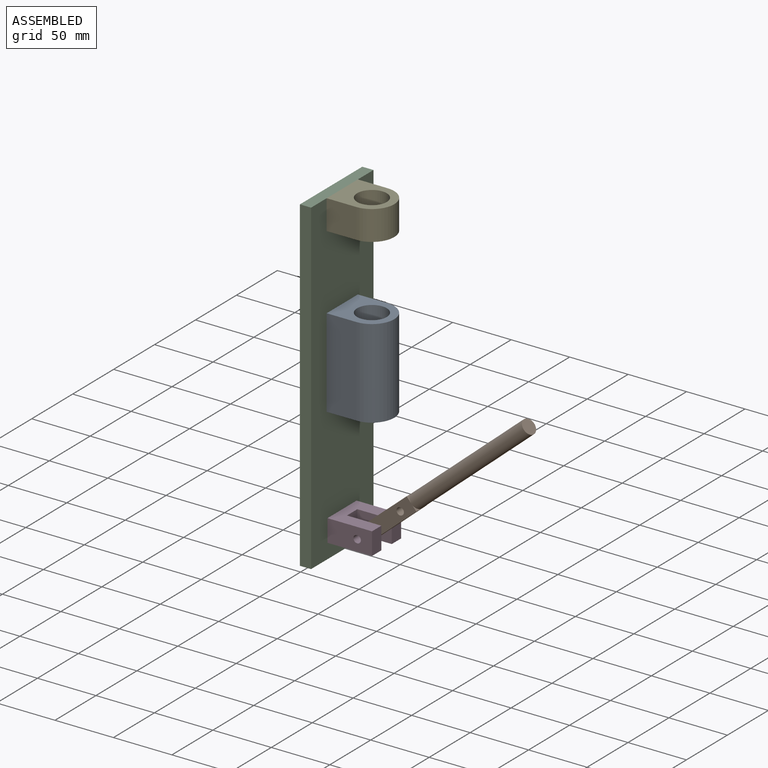
[diagram: assembled view]
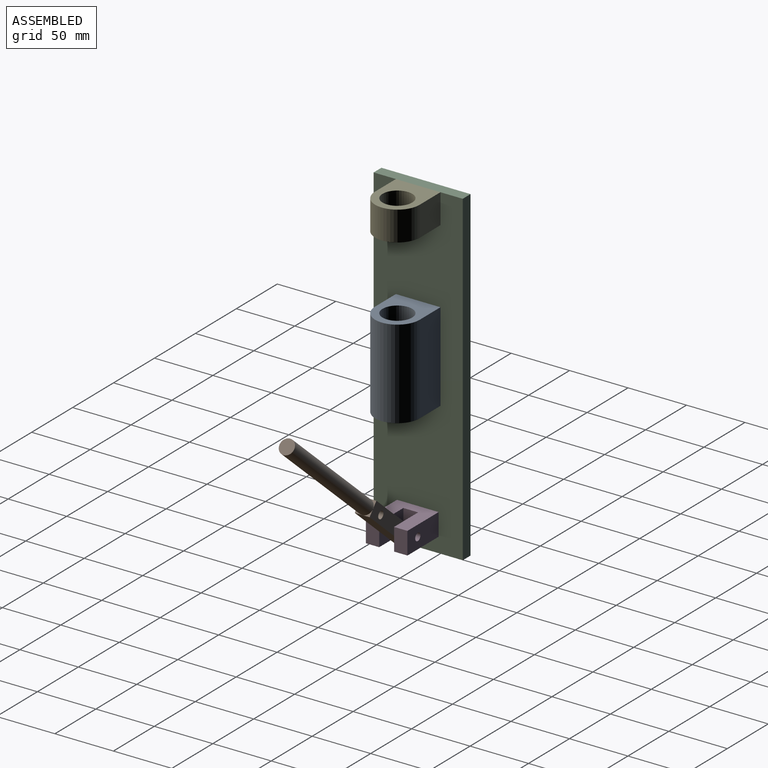
[diagram: assembled view, second angle]
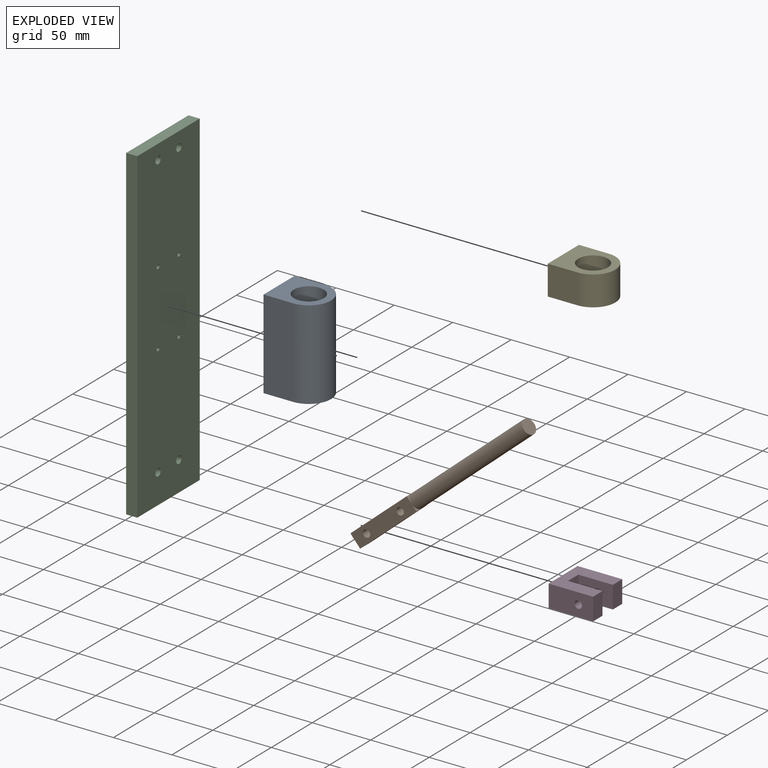
[diagram: exploded view]
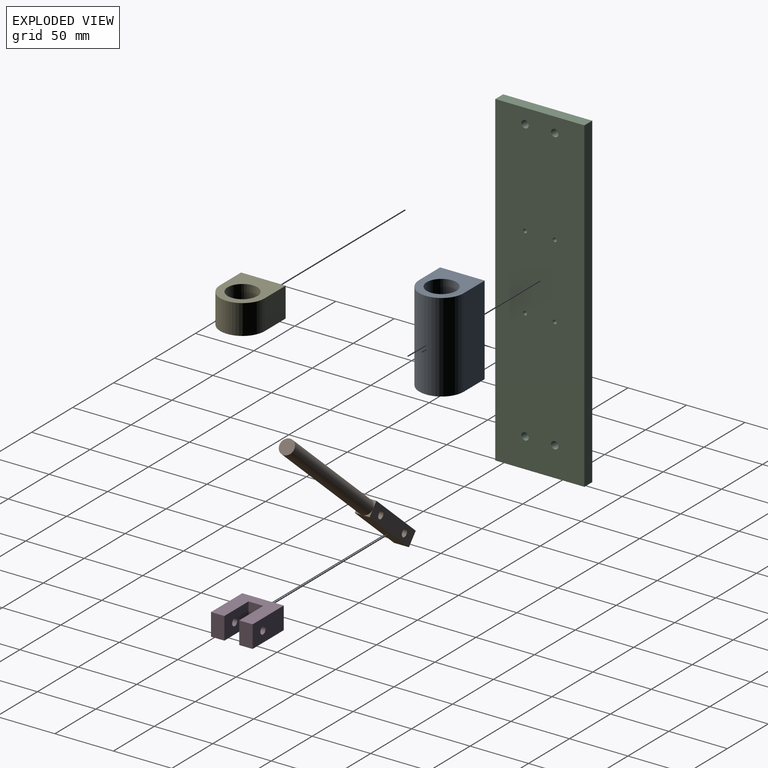
[diagram: exploded view, second angle]
ASSEMBLY  parts=5 mates=4
PART A: 15 faces, bbox 38.1x44.5x76.2 mm
  f0: plane 76.2x25.4mm, normal (-1,0,0), area 1935.5mm2, adj f1,f4,f5,f6
  f1: plane 76.2x38.1mm, normal (0,-1,0), area 2869mm2, adj f0,f2,f5,f6,f7,f9,f11,f13
  f2: plane 76.2x25.4mm, normal (1,0,0), area 1935.5mm2, adj f1,f4,f5,f6
  f3: cylinder r=12.7mm len=76.2mm, axis (0,0,-1), area 6080.5mm2, adj f5,f6
  f4: cylinder r=19.05mm len=76.2mm, axis (0,0,-1), area 4560.4mm2, adj f0,f2,f5,f6
  f5: plane 44.45x38.1mm, normal (0,0,1), area 1031.1mm2, adj f0,f1,f2,f3,f4
  f6: plane 44.45x38.1mm, normal (0,0,-1), area 1031.1mm2, adj f0,f1,f2,f3,f4
  f7: cylinder r=1.65mm len=12.7mm, axis (0,-1,0), area 131.7mm2, adj f1,f8
  f8: plane 3.3x3.3mm, normal (0,-1,0), area 8.6mm2, adj f7
  f9: cylinder r=1.65mm len=12.7mm, axis (0,-1,0), area 131.7mm2, adj f1,f10
  f10: plane 3.3x3.3mm, normal (0,-1,0), area 8.6mm2, adj f9
  f11: cylinder r=1.65mm len=12.7mm, axis (0,-1,0), area 131.7mm2, adj f1,f12
  f12: plane 3.3x3.3mm, normal (0,-1,0), area 8.6mm2, adj f11
  f13: cylinder r=1.65mm len=12.7mm, axis (0,-1,0), area 131.7mm2, adj f1,f14
  f14: plane 3.3x3.3mm, normal (0,-1,0), area 8.6mm2, adj f13
PART B: 13 faces, bbox 190.5x12.7x12.7 mm
  f0: plane 6.35x6.35mm, normal (1,0,0), area 8.7mm2, adj f3,f8,f9
  f1: plane 6.35x6.35mm, normal (1,0,0), area 8.7mm2, adj f3,f7,f9
  f2: plane 6.35x6.35mm, normal (1,0,0), area 8.7mm2, adj f5,f7,f9
  f3: plane 63.5x12.7mm, normal (0,0,1), area 806.5mm2, adj f0,f1,f4,f7,f8
  f4: plane 12.7x12.7mm, normal (-1,0,0), area 161.3mm2, adj f3,f5,f7,f8
  f5: plane 63.5x12.7mm, normal (0,0,-1), area 806.5mm2, adj f2,f4,f6,f7,f8
  f6: plane 6.35x6.35mm, normal (1,0,0), area 8.7mm2, adj f5,f8,f9
  f7: plane 63.5x12.7mm, normal (0,-1,0), area 743.1mm2, adj f1,f2,f3,f4,f5,f11,f12
  f8: plane 63.5x12.7mm, normal (0,1,0), area 743.1mm2, adj f0,f3,f4,f5,f6,f11,f12
  f9: cylinder r=6.35mm len=127mm, axis (-1,0,0), area 5067.1mm2, adj f0,f1,f2,f6,f10
  f10: plane 12.7x12.7mm, normal (1,0,0), area 126.7mm2, adj f9
  f11: cylinder r=3.17mm len=12.7mm, axis (0,-1,0), area 253.4mm2, adj f7,f8
  f12: cylinder r=3.17mm len=12.7mm, axis (0,-1,0), area 253.4mm2, adj f7,f8
PART C: 14 faces, bbox 279.4x76.2x9.5 mm
  f0: plane 76.2x9.53mm, normal (-1,0,0), area 725.8mm2, adj f1,f10,f12,f13
  f1: plane 279.4x9.53mm, normal (0,-1,0), area 2661.3mm2, adj f0,f2,f12,f13
  f2: plane 76.2x9.53mm, normal (1,0,0), area 725.8mm2, adj f1,f10,f12,f13
  f3: cylinder r=1.65mm len=9.53mm, axis (0,0,-1), area 98.8mm2, adj f12,f13
  f4: cylinder r=1.65mm len=9.53mm, axis (0,0,-1), area 98.8mm2, adj f12,f13
  f5: cylinder r=1.65mm len=9.53mm, axis (0,0,-1), area 98.8mm2, adj f12,f13
  f6: cylinder r=3.17mm len=9.53mm, axis (0,0,-1), area 190mm2, adj f12,f13
  f7: cylinder r=3.17mm len=9.53mm, axis (0,0,-1), area 190mm2, adj f12,f13
  f8: cylinder r=3.17mm len=9.53mm, axis (0,0,-1), area 190mm2, adj f12,f13
  f9: cylinder r=3.17mm len=9.53mm, axis (0,0,-1), area 190mm2, adj f12,f13
  f10: plane 279.4x9.53mm, normal (0,1,0), area 2661.3mm2, adj f0,f2,f12,f13
  f11: cylinder r=1.65mm len=9.53mm, axis (0,0,-1), area 98.8mm2, adj f12,f13
  f12: plane 279.4x76.2mm, normal (0,0,1), area 21129.3mm2, adj f0,f1,f2,f3,f4,f5,f6,f7
  f13: plane 279.4x76.2mm, normal (0,0,-1), area 21129.3mm2, adj f0,f1,f2,f3,f4,f5,f6,f7
PART D: 16 faces, bbox 35.6x19.1x38.1 mm
  f0: plane 19.05x11.43mm, normal (0,0,1), area 217.7mm2, adj f1,f7,f8,f9
  f1: plane 38.1x19.05mm, normal (-1,0,0), area 694.1mm2, adj f0,f2,f8,f9,f10
  f2: plane 35.56x19.05mm, normal (0,0,-1), area 614.1mm2, adj f1,f3,f8,f9,f12,f14
  f3: plane 38.1x19.05mm, normal (1,0,0), area 694.1mm2, adj f2,f4,f8,f9,f11
  f4: plane 19.05x11.43mm, normal (0,0,1), area 217.7mm2, adj f3,f5,f8,f9
  f5: plane 29.45x19.05mm, normal (-1,0,0), area 529.3mm2, adj f4,f6,f8,f9,f11
  f6: plane 19.05x12.7mm, normal (0,0,1), area 241.9mm2, adj f5,f7,f8,f9
  f7: plane 29.45x19.05mm, normal (1,0,0), area 529.3mm2, adj f0,f6,f8,f9,f10
  f8: plane 38.1x35.56mm, normal (0,-1,0), area 980.8mm2, adj f0,f1,f2,f3,f4,f5,f6,f7
  f9: plane 38.1x35.56mm, normal (0,1,0), area 980.8mm2, adj f0,f1,f2,f3,f4,f5,f6,f7
  f10: cylinder r=3.17mm len=11.43mm, axis (1,0,0), area 228mm2, adj f1,f7
  f11: cylinder r=3.17mm len=11.43mm, axis (1,0,0), area 228mm2, adj f3,f5
  f12: cylinder r=3.17mm len=12.7mm, axis (0,0,-1), area 253.4mm2, adj f2,f13
  f13: plane 6.35x6.35mm, normal (0,0,-1), area 31.7mm2, adj f12
  f14: cylinder r=3.17mm len=12.7mm, axis (0,0,-1), area 253.4mm2, adj f2,f15
  f15: plane 6.35x6.35mm, normal (0,0,-1), area 31.7mm2, adj f14
PART E: 11 faces, bbox 38.1x44.5x25.4 mm
  f0: plane 25.4x25.4mm, normal (-1,0,0), area 645.2mm2, adj f1,f4,f5,f6
  f1: plane 38.1x25.4mm, normal (0,-1,0), area 904.4mm2, adj f0,f2,f5,f6,f7,f9
  f2: plane 25.4x25.4mm, normal (1,0,0), area 645.2mm2, adj f1,f4,f5,f6
  f3: cylinder r=12.7mm len=25.4mm, axis (0,0,-1), area 2026.8mm2, adj f5,f6
  f4: cylinder r=19.05mm len=38.1mm, axis (0,0,-1), area 1520.1mm2, adj f0,f2,f5,f6
  f5: plane 44.45x38.1mm, normal (0,0,1), area 1031.1mm2, adj f0,f1,f2,f3,f4
  f6: plane 44.45x38.1mm, normal (0,0,-1), area 1031.1mm2, adj f0,f1,f2,f3,f4
  f7: cylinder r=3.17mm len=12.7mm, axis (0,-1,0), area 253.4mm2, adj f1,f8
  f8: plane 6.35x6.35mm, normal (0,-1,0), area 31.7mm2, adj f7
  f9: cylinder r=3.17mm len=12.7mm, axis (0,-1,0), area 253.4mm2, adj f1,f10
  f10: plane 6.35x6.35mm, normal (0,-1,0), area 31.7mm2, adj f9
PLACE A rot(axis=(0.71,0.71,0),180deg) t=(-10.75,57.15,-76.2)mm
PLACE B rot(axis=(0,-1,0),40.8deg) t=(29.47,-13,-257.58)mm
PLACE C rot(axis=(0,1,0),90deg) t=(0,-50.8,12.7)mm
PLACE D rot(axis=(-0.58,0.58,-0.58),120deg) t=(64.41,-36.59,-254)mm
PLACE E rot(axis=(0.71,0.71,0),180deg) t=(-12.05,146.05,12.7)mm
MATE fastened A.f7 <-> C.f11  axis (-1,0,0) through (9.52,-25.4,-82.55)mm
MATE revolute B.f12 <-> D.f10  axis (0,1,0) through (34.92,-6.65,-244.48)mm
MATE fastened D.f14 <-> C.f7  axis (-1,0,0) through (9.53,0,-241.3)mm
MATE fastened E.f9 <-> C.f8  axis (-1,0,0) through (9.53,-25.4,0)mm
